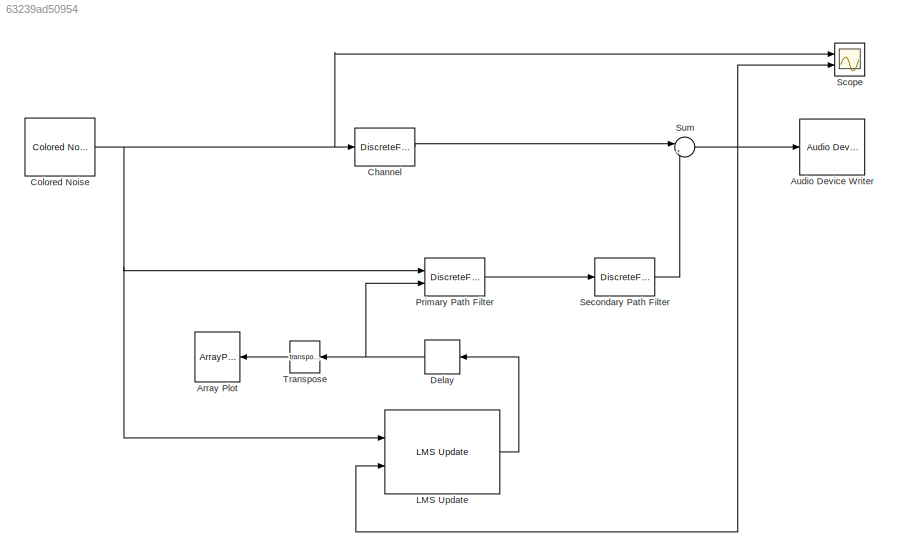
MODEL slx_63239ad50954
KIND model
CONFIG AbsTol = auto
CONFIG EnableMultiTasking = off
CONFIG FixedStep = auto
CONFIG MaxStep = auto
CONFIG MinStep = auto
CONFIG RelTol = 1e-3
CONFIG SampleTimeConstraint = Unconstrained
CONFIG Solver = VariableStepAuto
CONFIG SolverName = VariableStepAuto
CONFIG StartTime = 0.0
CONFIG StopTime = 5
BLOCK [ArrayPlot] Array Plot
  Ports = [1]
  ScopeSpecificationString = dsp.scopes.ArrayPlotBlockSpecification('CurrentConfiguration', extmgr.ConfigurationSet(extmgr.Configuration('Core','General UI',true),extmgr.Configuration('Core','Source UI',true),extmgr.Configuration('Sources','WiredSimulink',true),extmgr.Configuration('Visuals','Array Plot',true,'DisplayPropertyDefaults',struct('MinYLimReal','5.28371e+165','MaxYLimReal','1.10623e+166','YLabelReal','Amplitude','M...<+1423ch>
BLOCK [Reference] Audio Device Writer  REF=dspsnks4/Audio Device
Writer
  Ports = [1]
  SourceBlock = dspsnks4/Audio Device\nWriter
  SourceProductBaseCode = DS
  SourceProductName = DSP System Toolbox
  SourceType = Audio Device Writer
BLOCK [DiscreteFir] Channel
  Coefficients = [0.5 0.1 0.2 0.4 0 0 -0.125 0.3 0.5 0 0.075 -0.25 -0.4]
  InputPortMap = u0
  OutputPortMap = o0
  Ports = [1, 1]
BLOCK [Reference] Colored Noise  REF=dspsrcs4/Colored Noise
  Ports = [0, 1]
  SourceBlock = dspsrcs4/Colored Noise
  SourceProductBaseCode = DS
  SourceProductName = DSP System Toolbox
  SourceType = dsp.simulink.ColoredNoise
BLOCK [Delay] Delay 
  DelayLength = 1
  InitialCondition = 0
  InputPortMap = u0
  Ports = [1, 1]
BLOCK [Reference] LMS Update  REF=dspadpt3/LMS Update
  Ports = [2, 1]
  SourceBlock = dspadpt3/LMS Update
  SourceProductBaseCode = DS
  SourceProductName = DSP System Toolbox
  SourceType = dsp.private.LMSUpdate
BLOCK [DiscreteFir] Primary Path Filter
  CoefSource = Input port
  InputPortMap = u0,u1
  OutputPortMap = o0
  Ports = [2, 1]
BLOCK [Scope] Scope
  Floating = off
  NumInputPorts = 2
  Ports = [2]
  ScopeSpecificationString = Simulink.scopes.TimeScopeBlockCfg('CurrentConfiguration', extmgr.ConfigurationSet(extmgr.Configuration('Core','General UI',true),extmgr.Configuration('Core','Source UI',true),extmgr.Configuration('Sources','WiredSimulink',true),extmgr.Configuration('Visuals','Time Domain',true,'SerializedDisplays',{struct('MinYLimReal','-43345555097351419927833432631224519700340721508635424444986190122954553209116...<+2715ch>
BLOCK [DiscreteFir] Secondary Path Filter
  Coefficients = [ 0 0 -0.5 -0.5 -0.3 0.2 -0.1 0.5 -0.5 ]
  InputPortMap = u0
  OutputPortMap = o0
  Ports = [1, 1]
BLOCK [Sum] Sum
  IconShape = round
  InputSameDT = off
  Inputs = |+-
  OutDataTypeStr = Inherit: Inherit via internal rule
  Ports = [2, 1]
  SaturateOnIntegerOverflow = off
BLOCK [Math] Transpose 
  Operator = transpose
  Ports = [1, 1]
  SignedPower = off
LINE Channel:1 -> Sum:1
NET Colored Noise:1 -> Channel:1, LMS Update:1, Primary Path Filter:1, Scope:1
NET Delay :1 -> Primary Path Filter:2, Transpose :1
LINE LMS Update:1 -> Delay :1
LINE Primary Path Filter:1 -> Secondary Path Filter:1
LINE Secondary Path Filter:1 -> Sum:2
NET Sum:1 -> Audio Device Writer:1, LMS Update:2, Scope:2
LINE Transpose :1 -> Array Plot:1
note: NET lines group one-source signal fan-out (src -> all destinations, sorted); 1:1 wires keep LINE
